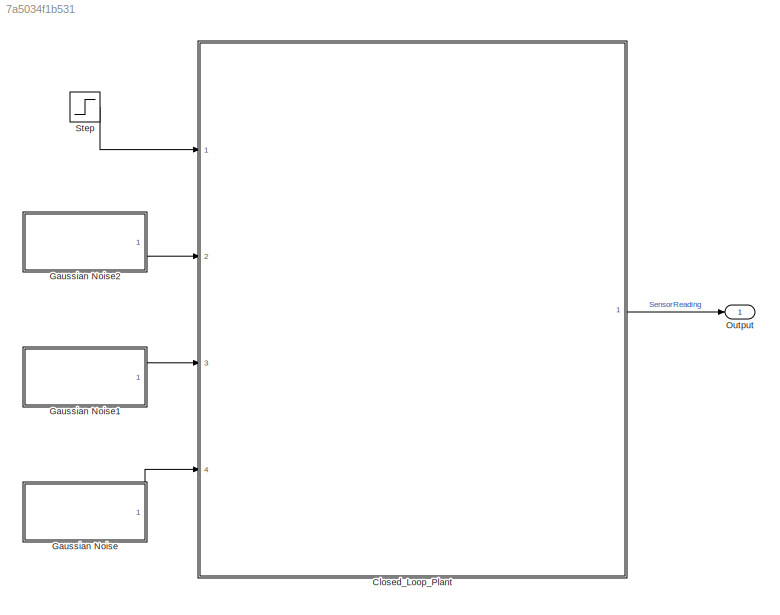
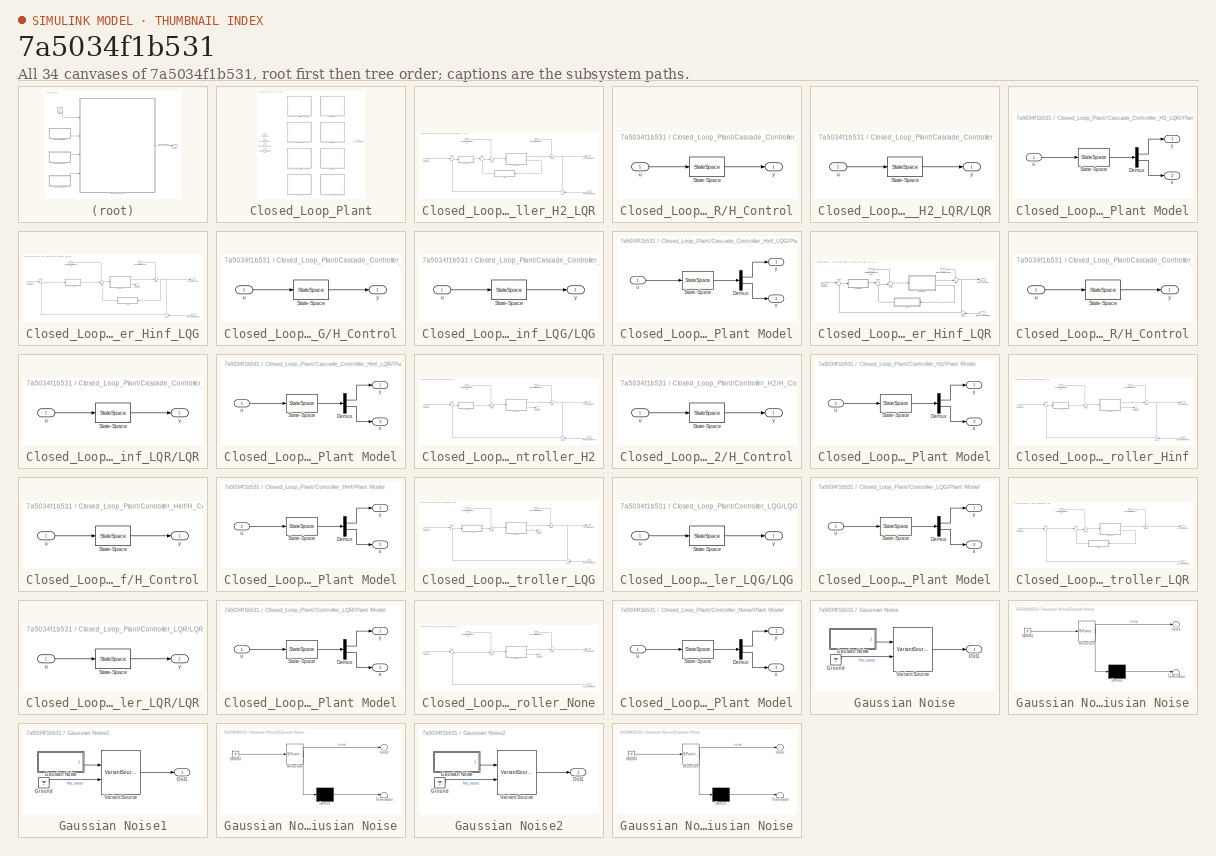
[diagram: thumbnail index - all 34 canvases of the model, root first then tree order]
MODEL slx_7a5034f1b531
KIND model
CONFIG AbsTol = auto
CONFIG EnableMultiTasking = off
CONFIG FixedStep = 1e-5
CONFIG MaxStep = auto
CONFIG MinStep = auto
CONFIG PreLoadFcn = Setup_VariantControl
CONFIG RelTol = 1e-3
CONFIG SampleTimeConstraint = Unconstrained
CONFIG Solver = ode4
CONFIG SolverName = ode4
CONFIG StartTime = 0.0
CONFIG StopTime = 50
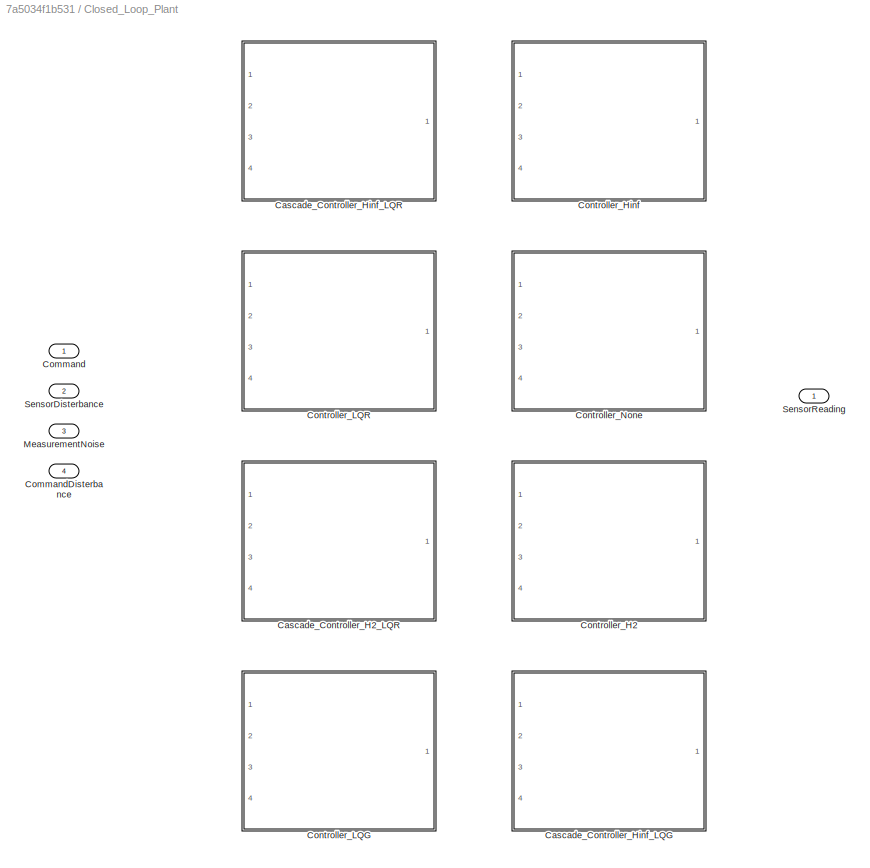
BLOCK [SubSystem] Closed_Loop_Plant
  Ports = [4, 1]
  RequestExecContextInheritance = off
  Variant = on
  VariantControl = Variant1
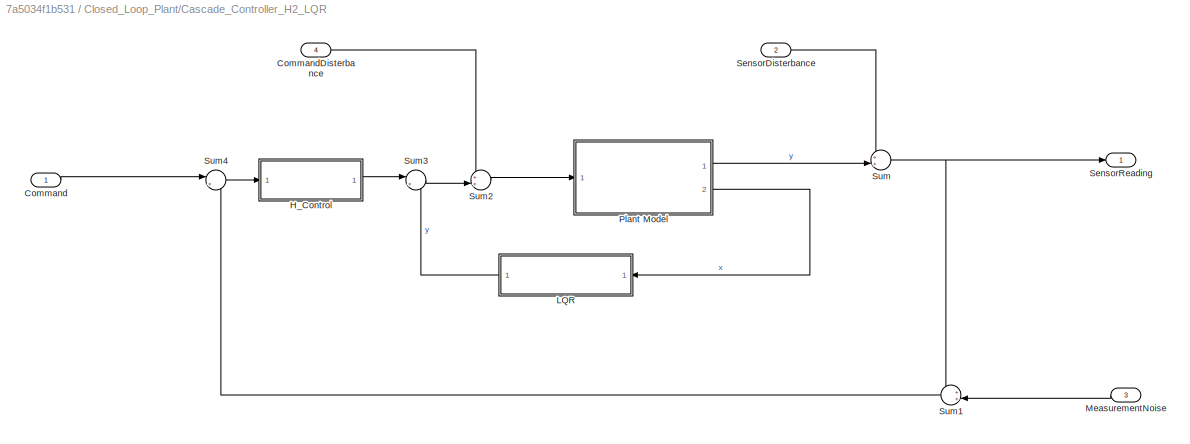
BLOCK [SubSystem] Closed_Loop_Plant/Cascade_Controller_H2_LQR
  Ports = [4, 1]
  RequestExecContextInheritance = off
  VariantControl = VC_H2_LQR
BLOCK [Inport] Closed_Loop_Plant/Cascade_Controller_H2_LQR/Command
  IconDisplay = Port number
BLOCK [Inport] Closed_Loop_Plant/Cascade_Controller_H2_LQR/CommandDisterbance
  IconDisplay = Port number
  Port = 4
  PortDimensions = 1
BLOCK [SubSystem] Closed_Loop_Plant/Cascade_Controller_H2_LQR/H_Control
  Ports = [1, 1]
  RequestExecContextInheritance = off
BLOCK [StateSpace] Closed_Loop_Plant/Cascade_Controller_H2_LQR/H_Control/State-Space
  A = plant.A
  B = plant.B
  C = plant.C
  D = plant.D
  InitialCondition = IC
  Ports = [1, 1]
BLOCK [Inport] Closed_Loop_Plant/Cascade_Controller_H2_LQR/H_Control/u
  IconDisplay = Port number
BLOCK [Outport] Closed_Loop_Plant/Cascade_Controller_H2_LQR/H_Control/y
  IconDisplay = Port number
BLOCK [SubSystem] Closed_Loop_Plant/Cascade_Controller_H2_LQR/LQR
  Ports = [1, 1]
  RequestExecContextInheritance = off
BLOCK [StateSpace] Closed_Loop_Plant/Cascade_Controller_H2_LQR/LQR/State-Space
  A = plant.A
  B = plant.B
  C = plant.C
  D = plant.D
  InitialCondition = IC
  Ports = [1, 1]
BLOCK [Inport] Closed_Loop_Plant/Cascade_Controller_H2_LQR/LQR/u
  IconDisplay = Port number
BLOCK [Outport] Closed_Loop_Plant/Cascade_Controller_H2_LQR/LQR/y
  IconDisplay = Port number
BLOCK [Inport] Closed_Loop_Plant/Cascade_Controller_H2_LQR/MeasurementNoise
  IconDisplay = Port number
  Port = 3
  PortDimensions = 1
BLOCK [SubSystem] Closed_Loop_Plant/Cascade_Controller_H2_LQR/Plant Model
  Ports = [1, 2]
  RequestExecContextInheritance = off
BLOCK [Demux] Closed_Loop_Plant/Cascade_Controller_H2_LQR/Plant Model/Demux
  DisplayOption = bar
  Outputs = [1,2]
  Ports = [1, 2]
BLOCK [StateSpace] Closed_Loop_Plant/Cascade_Controller_H2_LQR/Plant Model/State-Space
  A = plant.A*Rot2d(plant_misalignment)
  B = plant.B
  C = plant.C
  D = plant.D
  InitialCondition = IC
  Ports = [1, 1]
BLOCK [Inport] Closed_Loop_Plant/Cascade_Controller_H2_LQR/Plant Model/u
  IconDisplay = Port number
BLOCK [Outport] Closed_Loop_Plant/Cascade_Controller_H2_LQR/Plant Model/x
  IconDisplay = Port number
  Port = 2
BLOCK [Outport] Closed_Loop_Plant/Cascade_Controller_H2_LQR/Plant Model/y
  IconDisplay = Port number
BLOCK [Inport] Closed_Loop_Plant/Cascade_Controller_H2_LQR/SensorDisterbance
  IconDisplay = Port number
  Port = 2
  PortDimensions = 1
BLOCK [Outport] Closed_Loop_Plant/Cascade_Controller_H2_LQR/SensorReading
  IconDisplay = Port number
  PortDimensions = 1
BLOCK [Sum] Closed_Loop_Plant/Cascade_Controller_H2_LQR/Sum
  IconShape = round
  InputSameDT = off
  Inputs = ++|
  OutDataTypeStr = Inherit: Inherit via internal rule
  Ports = [2, 1]
  SaturateOnIntegerOverflow = off
BLOCK [Sum] Closed_Loop_Plant/Cascade_Controller_H2_LQR/Sum1
  IconShape = round
  InputSameDT = off
  Inputs = ++|
  OutDataTypeStr = Inherit: Inherit via internal rule
  Ports = [2, 1]
  SaturateOnIntegerOverflow = off
BLOCK [Sum] Closed_Loop_Plant/Cascade_Controller_H2_LQR/Sum2
  IconShape = round
  InputSameDT = off
  Inputs = ++|
  OutDataTypeStr = Inherit: Inherit via internal rule
  Ports = [2, 1]
  SaturateOnIntegerOverflow = off
BLOCK [Sum] Closed_Loop_Plant/Cascade_Controller_H2_LQR/Sum3
  IconShape = round
  InputSameDT = off
  Inputs = |+-
  OutDataTypeStr = Inherit: Inherit via internal rule
  Ports = [2, 1]
  SaturateOnIntegerOverflow = off
BLOCK [Sum] Closed_Loop_Plant/Cascade_Controller_H2_LQR/Sum4
  IconShape = round
  InputSameDT = off
  Inputs = |++
  OutDataTypeStr = Inherit: Inherit via internal rule
  Ports = [2, 1]
  SaturateOnIntegerOverflow = off
BLOCK [SubSystem] Closed_Loop_Plant/Cascade_Controller_Hinf_LQG
  Ports = [4, 1]
  RequestExecContextInheritance = off
  VariantControl = VC_Hinf_LQG
BLOCK [Inport] Closed_Loop_Plant/Cascade_Controller_Hinf_LQG/Command
  IconDisplay = Port number
BLOCK [Inport] Closed_Loop_Plant/Cascade_Controller_Hinf_LQG/CommandDisterbance
  IconDisplay = Port number
  Port = 4
  PortDimensions = 1
BLOCK [SubSystem] Closed_Loop_Plant/Cascade_Controller_Hinf_LQG/H_Control
  Ports = [1, 1]
  RequestExecContextInheritance = off
BLOCK [StateSpace] Closed_Loop_Plant/Cascade_Controller_Hinf_LQG/H_Control/State-Space
  A = plant.A
  B = plant.B
  C = plant.C
  D = plant.D
  InitialCondition = IC
  Ports = [1, 1]
BLOCK [Inport] Closed_Loop_Plant/Cascade_Controller_Hinf_LQG/H_Control/u
  IconDisplay = Port number
BLOCK [Outport] Closed_Loop_Plant/Cascade_Controller_Hinf_LQG/H_Control/y
  IconDisplay = Port number
BLOCK [SubSystem] Closed_Loop_Plant/Cascade_Controller_Hinf_LQG/LQG
  Ports = [1, 1]
  RequestExecContextInheritance = off
BLOCK [StateSpace] Closed_Loop_Plant/Cascade_Controller_Hinf_LQG/LQG/State-Space
  A = plant.A
  B = plant.B
  C = plant.C
  D = plant.D
  InitialCondition = IC
  Ports = [1, 1]
BLOCK [Inport] Closed_Loop_Plant/Cascade_Controller_Hinf_LQG/LQG/u
  IconDisplay = Port number
BLOCK [Outport] Closed_Loop_Plant/Cascade_Controller_Hinf_LQG/LQG/y
  IconDisplay = Port number
BLOCK [Inport] Closed_Loop_Plant/Cascade_Controller_Hinf_LQG/MeasurementNoise
  IconDisplay = Port number
  Port = 3
  PortDimensions = 1
BLOCK [SubSystem] Closed_Loop_Plant/Cascade_Controller_Hinf_LQG/Plant Model
  Ports = [1, 2]
  RequestExecContextInheritance = off
BLOCK [Demux] Closed_Loop_Plant/Cascade_Controller_Hinf_LQG/Plant Model/Demux
  DisplayOption = bar
  Outputs = [1,2]
  Ports = [1, 2]
BLOCK [StateSpace] Closed_Loop_Plant/Cascade_Controller_Hinf_LQG/Plant Model/State-Space
  A = plant.A*Rot2d(plant_misalignment)
  B = plant.B
  C = plant.C
  D = plant.D
  InitialCondition = IC
  Ports = [1, 1]
BLOCK [Inport] Closed_Loop_Plant/Cascade_Controller_Hinf_LQG/Plant Model/u
  IconDisplay = Port number
BLOCK [Outport] Closed_Loop_Plant/Cascade_Controller_Hinf_LQG/Plant Model/x
  IconDisplay = Port number
  Port = 2
BLOCK [Outport] Closed_Loop_Plant/Cascade_Controller_Hinf_LQG/Plant Model/y
  IconDisplay = Port number
BLOCK [Inport] Closed_Loop_Plant/Cascade_Controller_Hinf_LQG/SensorDisterbance
  IconDisplay = Port number
  Port = 2
  PortDimensions = 1
BLOCK [Outport] Closed_Loop_Plant/Cascade_Controller_Hinf_LQG/SensorReading
  IconDisplay = Port number
  PortDimensions = 1
BLOCK [Sum] Closed_Loop_Plant/Cascade_Controller_Hinf_LQG/Sum
  IconShape = round
  InputSameDT = off
  Inputs = ++|
  OutDataTypeStr = Inherit: Inherit via internal rule
  Ports = [2, 1]
  SaturateOnIntegerOverflow = off
BLOCK [Sum] Closed_Loop_Plant/Cascade_Controller_Hinf_LQG/Sum1
  IconShape = round
  InputSameDT = off
  Inputs = ++|
  OutDataTypeStr = Inherit: Inherit via internal rule
  Ports = [2, 1]
  SaturateOnIntegerOverflow = off
BLOCK [Sum] Closed_Loop_Plant/Cascade_Controller_Hinf_LQG/Sum2
  IconShape = round
  InputSameDT = off
  Inputs = +++
  OutDataTypeStr = Inherit: Inherit via internal rule
  Ports = [3, 1]
  SaturateOnIntegerOverflow = off
BLOCK [Sum] Closed_Loop_Plant/Cascade_Controller_Hinf_LQG/Sum4
  IconShape = round
  InputSameDT = off
  Inputs = |++
  OutDataTypeStr = Inherit: Inherit via internal rule
  Ports = [2, 1]
  SaturateOnIntegerOverflow = off
BLOCK [Terminator] Closed_Loop_Plant/Cascade_Controller_Hinf_LQG/Terminator
BLOCK [SubSystem] Closed_Loop_Plant/Cascade_Controller_Hinf_LQR
  Ports = [4, 1]
  RequestExecContextInheritance = off
  VariantControl = VC_Cascade_Hinf_LQR
BLOCK [Inport] Closed_Loop_Plant/Cascade_Controller_Hinf_LQR/Command
  IconDisplay = Port number
BLOCK [Inport] Closed_Loop_Plant/Cascade_Controller_Hinf_LQR/CommandDisterbance
  IconDisplay = Port number
  Port = 4
  PortDimensions = 1
BLOCK [SubSystem] Closed_Loop_Plant/Cascade_Controller_Hinf_LQR/H_Control
  Ports = [1, 1]
  RequestExecContextInheritance = off
BLOCK [StateSpace] Closed_Loop_Plant/Cascade_Controller_Hinf_LQR/H_Control/State-Space
  A = plant.A
  B = plant.B
  C = plant.C
  D = plant.D
  InitialCondition = IC
  Ports = [1, 1]
BLOCK [Inport] Closed_Loop_Plant/Cascade_Controller_Hinf_LQR/H_Control/u
  IconDisplay = Port number
BLOCK [Outport] Closed_Loop_Plant/Cascade_Controller_Hinf_LQR/H_Control/y
  IconDisplay = Port number
BLOCK [SubSystem] Closed_Loop_Plant/Cascade_Controller_Hinf_LQR/LQR
  Ports = [1, 1]
  RequestExecContextInheritance = off
BLOCK [StateSpace] Closed_Loop_Plant/Cascade_Controller_Hinf_LQR/LQR/State-Space
  A = plant.A
  B = plant.B
  C = plant.C
  D = plant.D
  InitialCondition = IC
  Ports = [1, 1]
BLOCK [Inport] Closed_Loop_Plant/Cascade_Controller_Hinf_LQR/LQR/u
  IconDisplay = Port number
BLOCK [Outport] Closed_Loop_Plant/Cascade_Controller_Hinf_LQR/LQR/y
  IconDisplay = Port number
BLOCK [Inport] Closed_Loop_Plant/Cascade_Controller_Hinf_LQR/MeasurementNoise
  IconDisplay = Port number
  Port = 3
  PortDimensions = 1
BLOCK [SubSystem] Closed_Loop_Plant/Cascade_Controller_Hinf_LQR/Plant Model
  Ports = [1, 2]
  RequestExecContextInheritance = off
BLOCK [Demux] Closed_Loop_Plant/Cascade_Controller_Hinf_LQR/Plant Model/Demux
  DisplayOption = bar
  Outputs = [1,2]
  Ports = [1, 2]
BLOCK [StateSpace] Closed_Loop_Plant/Cascade_Controller_Hinf_LQR/Plant Model/State-Space
  A = plant.A*Rot2d(plant_misalignment)
  B = plant.B
  C = plant.C
  D = plant.D
  InitialCondition = IC
  Ports = [1, 1]
BLOCK [Inport] Closed_Loop_Plant/Cascade_Controller_Hinf_LQR/Plant Model/u
  IconDisplay = Port number
BLOCK [Outport] Closed_Loop_Plant/Cascade_Controller_Hinf_LQR/Plant Model/x
  IconDisplay = Port number
  Port = 2
BLOCK [Outport] Closed_Loop_Plant/Cascade_Controller_Hinf_LQR/Plant Model/y
  IconDisplay = Port number
BLOCK [Inport] Closed_Loop_Plant/Cascade_Controller_Hinf_LQR/SensorDisterbance
  IconDisplay = Port number
  Port = 2
  PortDimensions = 1
BLOCK [Outport] Closed_Loop_Plant/Cascade_Controller_Hinf_LQR/SensorReading
  IconDisplay = Port number
  PortDimensions = 1
BLOCK [Sum] Closed_Loop_Plant/Cascade_Controller_Hinf_LQR/Sum
  IconShape = round
  InputSameDT = off
  Inputs = ++|
  OutDataTypeStr = Inherit: Inherit via internal rule
  Ports = [2, 1]
  SaturateOnIntegerOverflow = off
BLOCK [Sum] Closed_Loop_Plant/Cascade_Controller_Hinf_LQR/Sum1
  IconShape = round
  InputSameDT = off
  Inputs = ++|
  OutDataTypeStr = Inherit: Inherit via internal rule
  Ports = [2, 1]
  SaturateOnIntegerOverflow = off
BLOCK [Sum] Closed_Loop_Plant/Cascade_Controller_Hinf_LQR/Sum2
  IconShape = round
  InputSameDT = off
  Inputs = ++|
  OutDataTypeStr = Inherit: Inherit via internal rule
  Ports = [2, 1]
  SaturateOnIntegerOverflow = off
BLOCK [Sum] Closed_Loop_Plant/Cascade_Controller_Hinf_LQR/Sum3
  IconShape = round
  InputSameDT = off
  Inputs = |+-
  OutDataTypeStr = Inherit: Inherit via internal rule
  Ports = [2, 1]
  SaturateOnIntegerOverflow = off
BLOCK [Sum] Closed_Loop_Plant/Cascade_Controller_Hinf_LQR/Sum4
  IconShape = round
  InputSameDT = off
  Inputs = |++
  OutDataTypeStr = Inherit: Inherit via internal rule
  Ports = [2, 1]
  SaturateOnIntegerOverflow = off
BLOCK [Inport] Closed_Loop_Plant/Command
  IconDisplay = Port number
BLOCK [Inport] Closed_Loop_Plant/CommandDisterbance
  IconDisplay = Port number
  Port = 4
BLOCK [SubSystem] Closed_Loop_Plant/Controller_H2
  Ports = [4, 1]
  RequestExecContextInheritance = off
  VariantControl = VC_H2
BLOCK [Inport] Closed_Loop_Plant/Controller_H2/Command
  IconDisplay = Port number
BLOCK [Inport] Closed_Loop_Plant/Controller_H2/CommandDisterbance
  IconDisplay = Port number
  Port = 4
  PortDimensions = 1
BLOCK [SubSystem] Closed_Loop_Plant/Controller_H2/H_Control
  Ports = [1, 1]
  RequestExecContextInheritance = off
BLOCK [StateSpace] Closed_Loop_Plant/Controller_H2/H_Control/State-Space
  A = plant.A
  B = plant.B
  C = plant.C
  D = plant.D
  InitialCondition = IC
  Ports = [1, 1]
BLOCK [Inport] Closed_Loop_Plant/Controller_H2/H_Control/u
  IconDisplay = Port number
BLOCK [Outport] Closed_Loop_Plant/Controller_H2/H_Control/y
  IconDisplay = Port number
BLOCK [Inport] Closed_Loop_Plant/Controller_H2/MeasurementNoise
  IconDisplay = Port number
  Port = 3
  PortDimensions = 1
BLOCK [SubSystem] Closed_Loop_Plant/Controller_H2/Plant Model
  Ports = [1, 2]
  RequestExecContextInheritance = off
BLOCK [Demux] Closed_Loop_Plant/Controller_H2/Plant Model/Demux
  DisplayOption = bar
  Outputs = [1,2]
  Ports = [1, 2]
BLOCK [StateSpace] Closed_Loop_Plant/Controller_H2/Plant Model/State-Space
  A = plant.A*Rot2d(plant_misalignment)
  B = plant.B
  C = plant.C
  D = plant.D
  InitialCondition = IC
  Ports = [1, 1]
BLOCK [Inport] Closed_Loop_Plant/Controller_H2/Plant Model/u
  IconDisplay = Port number
BLOCK [Outport] Closed_Loop_Plant/Controller_H2/Plant Model/x
  IconDisplay = Port number
  Port = 2
BLOCK [Outport] Closed_Loop_Plant/Controller_H2/Plant Model/y
  IconDisplay = Port number
BLOCK [Inport] Closed_Loop_Plant/Controller_H2/SensorDisterbance
  IconDisplay = Port number
  Port = 2
  PortDimensions = 1
BLOCK [Outport] Closed_Loop_Plant/Controller_H2/SensorReading
  IconDisplay = Port number
  PortDimensions = 1
BLOCK [Sum] Closed_Loop_Plant/Controller_H2/Sum
  IconShape = round
  InputSameDT = off
  Inputs = ++|
  OutDataTypeStr = Inherit: Inherit via internal rule
  Ports = [2, 1]
  SaturateOnIntegerOverflow = off
BLOCK [Sum] Closed_Loop_Plant/Controller_H2/Sum1
  IconShape = round
  InputSameDT = off
  Inputs = ++|
  OutDataTypeStr = Inherit: Inherit via internal rule
  Ports = [2, 1]
  SaturateOnIntegerOverflow = off
BLOCK [Sum] Closed_Loop_Plant/Controller_H2/Sum2
  IconShape = round
  InputSameDT = off
  Inputs = ++|
  OutDataTypeStr = Inherit: Inherit via internal rule
  Ports = [2, 1]
  SaturateOnIntegerOverflow = off
BLOCK [Sum] Closed_Loop_Plant/Controller_H2/Sum4
  IconShape = round
  InputSameDT = off
  Inputs = |++
  OutDataTypeStr = Inherit: Inherit via internal rule
  Ports = [2, 1]
  SaturateOnIntegerOverflow = off
BLOCK [Terminator] Closed_Loop_Plant/Controller_H2/Terminator
BLOCK [SubSystem] Closed_Loop_Plant/Controller_Hinf
  Ports = [4, 1]
  RequestExecContextInheritance = off
  VariantControl = VC_Hinf
BLOCK [Inport] Closed_Loop_Plant/Controller_Hinf/Command
  IconDisplay = Port number
BLOCK [Inport] Closed_Loop_Plant/Controller_Hinf/CommandDisterbance
  IconDisplay = Port number
  Port = 4
  PortDimensions = 1
BLOCK [SubSystem] Closed_Loop_Plant/Controller_Hinf/H_Control
  Ports = [1, 1]
  RequestExecContextInheritance = off
BLOCK [StateSpace] Closed_Loop_Plant/Controller_Hinf/H_Control/State-Space
  A = plant.A
  B = plant.B
  C = plant.C
  D = plant.D
  InitialCondition = IC
  Ports = [1, 1]
BLOCK [Inport] Closed_Loop_Plant/Controller_Hinf/H_Control/u
  IconDisplay = Port number
BLOCK [Outport] Closed_Loop_Plant/Controller_Hinf/H_Control/y
  IconDisplay = Port number
BLOCK [Inport] Closed_Loop_Plant/Controller_Hinf/MeasurementNoise
  IconDisplay = Port number
  Port = 3
  PortDimensions = 1
BLOCK [SubSystem] Closed_Loop_Plant/Controller_Hinf/Plant Model
  Ports = [1, 2]
  RequestExecContextInheritance = off
BLOCK [Demux] Closed_Loop_Plant/Controller_Hinf/Plant Model/Demux
  DisplayOption = bar
  Outputs = [1,2]
  Ports = [1, 2]
BLOCK [StateSpace] Closed_Loop_Plant/Controller_Hinf/Plant Model/State-Space
  A = plant.A*Rot2d(plant_misalignment)
  B = plant.B
  C = plant.C
  D = plant.D
  InitialCondition = IC
  Ports = [1, 1]
BLOCK [Inport] Closed_Loop_Plant/Controller_Hinf/Plant Model/u
  IconDisplay = Port number
BLOCK [Outport] Closed_Loop_Plant/Controller_Hinf/Plant Model/x
  IconDisplay = Port number
  Port = 2
BLOCK [Outport] Closed_Loop_Plant/Controller_Hinf/Plant Model/y
  IconDisplay = Port number
BLOCK [Inport] Closed_Loop_Plant/Controller_Hinf/SensorDisterbance
  IconDisplay = Port number
  Port = 2
  PortDimensions = 1
BLOCK [Outport] Closed_Loop_Plant/Controller_Hinf/SensorReading
  IconDisplay = Port number
  PortDimensions = 1
BLOCK [Sum] Closed_Loop_Plant/Controller_Hinf/Sum
  IconShape = round
  InputSameDT = off
  Inputs = ++|
  OutDataTypeStr = Inherit: Inherit via internal rule
  Ports = [2, 1]
  SaturateOnIntegerOverflow = off
BLOCK [Sum] Closed_Loop_Plant/Controller_Hinf/Sum1
  IconShape = round
  InputSameDT = off
  Inputs = ++|
  OutDataTypeStr = Inherit: Inherit via internal rule
  Ports = [2, 1]
  SaturateOnIntegerOverflow = off
BLOCK [Sum] Closed_Loop_Plant/Controller_Hinf/Sum2
  IconShape = round
  InputSameDT = off
  Inputs = ++|
  OutDataTypeStr = Inherit: Inherit via internal rule
  Ports = [2, 1]
  SaturateOnIntegerOverflow = off
BLOCK [Sum] Closed_Loop_Plant/Controller_Hinf/Sum4
  IconShape = round
  InputSameDT = off
  Inputs = |++
  OutDataTypeStr = Inherit: Inherit via internal rule
  Ports = [2, 1]
  SaturateOnIntegerOverflow = off
BLOCK [Terminator] Closed_Loop_Plant/Controller_Hinf/Terminator
BLOCK [SubSystem] Closed_Loop_Plant/Controller_LQG
  Ports = [4, 1]
  RequestExecContextInheritance = off
  VariantControl = VC_LQG
BLOCK [Inport] Closed_Loop_Plant/Controller_LQG/Command
  IconDisplay = Port number
BLOCK [Inport] Closed_Loop_Plant/Controller_LQG/CommandDisterbance
  IconDisplay = Port number
  Port = 4
  PortDimensions = 1
BLOCK [SubSystem] Closed_Loop_Plant/Controller_LQG/LQG
  Ports = [1, 1]
  RequestExecContextInheritance = off
BLOCK [StateSpace] Closed_Loop_Plant/Controller_LQG/LQG/State-Space
  A = plant.A
  B = plant.B
  C = plant.C
  D = plant.D
  InitialCondition = IC
  Ports = [1, 1]
BLOCK [Inport] Closed_Loop_Plant/Controller_LQG/LQG/u
  IconDisplay = Port number
BLOCK [Outport] Closed_Loop_Plant/Controller_LQG/LQG/y
  IconDisplay = Port number
BLOCK [Inport] Closed_Loop_Plant/Controller_LQG/MeasurementNoise
  IconDisplay = Port number
  Port = 3
  PortDimensions = 1
BLOCK [SubSystem] Closed_Loop_Plant/Controller_LQG/Plant Model
  Ports = [1, 2]
  RequestExecContextInheritance = off
BLOCK [Demux] Closed_Loop_Plant/Controller_LQG/Plant Model/Demux
  DisplayOption = bar
  Outputs = [1,2]
  Ports = [1, 2]
BLOCK [StateSpace] Closed_Loop_Plant/Controller_LQG/Plant Model/State-Space
  A = plant.A*Rot2d(plant_misalignment)
  B = plant.B
  C = plant.C
  D = plant.D
  InitialCondition = IC
  Ports = [1, 1]
BLOCK [Inport] Closed_Loop_Plant/Controller_LQG/Plant Model/u
  IconDisplay = Port number
BLOCK [Outport] Closed_Loop_Plant/Controller_LQG/Plant Model/x
  IconDisplay = Port number
  Port = 2
BLOCK [Outport] Closed_Loop_Plant/Controller_LQG/Plant Model/y
  IconDisplay = Port number
BLOCK [Inport] Closed_Loop_Plant/Controller_LQG/SensorDisterbance
  IconDisplay = Port number
  Port = 2
  PortDimensions = 1
BLOCK [Outport] Closed_Loop_Plant/Controller_LQG/SensorReading
  IconDisplay = Port number
  PortDimensions = 1
BLOCK [Sum] Closed_Loop_Plant/Controller_LQG/Sum
  IconShape = round
  InputSameDT = off
  Inputs = ++|
  OutDataTypeStr = Inherit: Inherit via internal rule
  Ports = [2, 1]
  SaturateOnIntegerOverflow = off
BLOCK [Sum] Closed_Loop_Plant/Controller_LQG/Sum1
  IconShape = round
  InputSameDT = off
  Inputs = ++|
  OutDataTypeStr = Inherit: Inherit via internal rule
  Ports = [2, 1]
  SaturateOnIntegerOverflow = off
BLOCK [Sum] Closed_Loop_Plant/Controller_LQG/Sum2
  IconShape = round
  InputSameDT = off
  Inputs = ++|
  OutDataTypeStr = Inherit: Inherit via internal rule
  Ports = [2, 1]
  SaturateOnIntegerOverflow = off
BLOCK [Sum] Closed_Loop_Plant/Controller_LQG/Sum4
  IconShape = round
  InputSameDT = off
  Inputs = |++
  OutDataTypeStr = Inherit: Inherit via internal rule
  Ports = [2, 1]
  SaturateOnIntegerOverflow = off
BLOCK [Terminator] Closed_Loop_Plant/Controller_LQG/Terminator
BLOCK [SubSystem] Closed_Loop_Plant/Controller_LQR
  Ports = [4, 1]
  RequestExecContextInheritance = off
  VariantControl = VC_LQR
BLOCK [Inport] Closed_Loop_Plant/Controller_LQR/Command
  IconDisplay = Port number
BLOCK [Inport] Closed_Loop_Plant/Controller_LQR/CommandDisterbance
  IconDisplay = Port number
  Port = 4
  PortDimensions = 1
BLOCK [SubSystem] Closed_Loop_Plant/Controller_LQR/LQR
  Ports = [1, 1]
  RequestExecContextInheritance = off
BLOCK [StateSpace] Closed_Loop_Plant/Controller_LQR/LQR/State-Space
  A = plant.A
  B = plant.B
  C = plant.C
  D = plant.D
  InitialCondition = IC
  Ports = [1, 1]
BLOCK [Inport] Closed_Loop_Plant/Controller_LQR/LQR/u
  IconDisplay = Port number
BLOCK [Outport] Closed_Loop_Plant/Controller_LQR/LQR/y
  IconDisplay = Port number
BLOCK [Inport] Closed_Loop_Plant/Controller_LQR/MeasurementNoise
  IconDisplay = Port number
  Port = 3
  PortDimensions = 1
BLOCK [SubSystem] Closed_Loop_Plant/Controller_LQR/Plant Model
  Ports = [1, 2]
  RequestExecContextInheritance = off
BLOCK [Demux] Closed_Loop_Plant/Controller_LQR/Plant Model/Demux
  DisplayOption = bar
  Outputs = [1,2]
  Ports = [1, 2]
BLOCK [StateSpace] Closed_Loop_Plant/Controller_LQR/Plant Model/State-Space
  A = plant.A*Rot2d(plant_misalignment)
  B = plant.B
  C = plant.C
  D = plant.D
  InitialCondition = IC
  Ports = [1, 1]
BLOCK [Inport] Closed_Loop_Plant/Controller_LQR/Plant Model/u
  IconDisplay = Port number
BLOCK [Outport] Closed_Loop_Plant/Controller_LQR/Plant Model/x
  IconDisplay = Port number
  Port = 2
BLOCK [Outport] Closed_Loop_Plant/Controller_LQR/Plant Model/y
  IconDisplay = Port number
BLOCK [Inport] Closed_Loop_Plant/Controller_LQR/SensorDisterbance
  IconDisplay = Port number
  Port = 2
  PortDimensions = 1
BLOCK [Outport] Closed_Loop_Plant/Controller_LQR/SensorReading
  IconDisplay = Port number
  PortDimensions = 1
BLOCK [Sum] Closed_Loop_Plant/Controller_LQR/Sum
  IconShape = round
  InputSameDT = off
  Inputs = ++|
  OutDataTypeStr = Inherit: Inherit via internal rule
  Ports = [2, 1]
  SaturateOnIntegerOverflow = off
BLOCK [Sum] Closed_Loop_Plant/Controller_LQR/Sum2
  IconShape = round
  InputSameDT = off
  Inputs = ++|
  OutDataTypeStr = Inherit: Inherit via internal rule
  Ports = [2, 1]
  SaturateOnIntegerOverflow = off
BLOCK [Sum] Closed_Loop_Plant/Controller_LQR/Sum3
  IconShape = round
  InputSameDT = off
  Inputs = |+-
  OutDataTypeStr = Inherit: Inherit via internal rule
  Ports = [2, 1]
  SaturateOnIntegerOverflow = off
BLOCK [Sum] Closed_Loop_Plant/Controller_LQR/Sum4
  IconShape = round
  InputSameDT = off
  Inputs = |++
  OutDataTypeStr = Inherit: Inherit via internal rule
  Ports = [2, 1]
  SaturateOnIntegerOverflow = off
BLOCK [SubSystem] Closed_Loop_Plant/Controller_None
  Ports = [4, 1]
  RequestExecContextInheritance = off
  VariantControl = VC_None
BLOCK [Inport] Closed_Loop_Plant/Controller_None/Command
  IconDisplay = Port number
BLOCK [Inport] Closed_Loop_Plant/Controller_None/CommandDisterbance
  IconDisplay = Port number
  Port = 4
  PortDimensions = 1
BLOCK [Inport] Closed_Loop_Plant/Controller_None/MeasurementNoise
  IconDisplay = Port number
  Port = 3
  PortDimensions = 1
BLOCK [SubSystem] Closed_Loop_Plant/Controller_None/Plant Model
  Ports = [1, 2]
  RequestExecContextInheritance = off
BLOCK [Demux] Closed_Loop_Plant/Controller_None/Plant Model/Demux
  DisplayOption = bar
  Outputs = [1,2]
  Ports = [1, 2]
BLOCK [StateSpace] Closed_Loop_Plant/Controller_None/Plant Model/State-Space
  A = plant.A*Rot2d(plant_misalignment)
  B = plant.B
  C = plant.C
  D = plant.D
  InitialCondition = IC
  Ports = [1, 1]
BLOCK [Inport] Closed_Loop_Plant/Controller_None/Plant Model/u
  IconDisplay = Port number
BLOCK [Outport] Closed_Loop_Plant/Controller_None/Plant Model/x
  IconDisplay = Port number
  Port = 2
BLOCK [Outport] Closed_Loop_Plant/Controller_None/Plant Model/y
  IconDisplay = Port number
BLOCK [Inport] Closed_Loop_Plant/Controller_None/SensorDisterbance
  IconDisplay = Port number
  Port = 2
  PortDimensions = 1
BLOCK [Outport] Closed_Loop_Plant/Controller_None/SensorReading
  IconDisplay = Port number
  PortDimensions = 1
BLOCK [Sum] Closed_Loop_Plant/Controller_None/Sum
  IconShape = round
  InputSameDT = off
  Inputs = ++|
  OutDataTypeStr = Inherit: Inherit via internal rule
  Ports = [2, 1]
  SaturateOnIntegerOverflow = off
BLOCK [Sum] Closed_Loop_Plant/Controller_None/Sum2
  IconShape = round
  InputSameDT = off
  Inputs = ++|
  OutDataTypeStr = Inherit: Inherit via internal rule
  Ports = [2, 1]
  SaturateOnIntegerOverflow = off
BLOCK [Sum] Closed_Loop_Plant/Controller_None/Sum4
  IconShape = round
  InputSameDT = off
  Inputs = |+-
  OutDataTypeStr = Inherit: Inherit via internal rule
  Ports = [2, 1]
  SaturateOnIntegerOverflow = off
BLOCK [Terminator] Closed_Loop_Plant/Controller_None/Terminator
BLOCK [Inport] Closed_Loop_Plant/MeasurementNoise
  IconDisplay = Port number
  Port = 3
BLOCK [Inport] Closed_Loop_Plant/SensorDisterbance
  IconDisplay = Port number
  Port = 2
BLOCK [Outport] Closed_Loop_Plant/SensorReading
  IconDisplay = Port number
BLOCK [SubSystem] Gaussian Noise
  Ports = [0, 1]
  RequestExecContextInheritance = off
BLOCK [SubSystem] Gaussian Noise/Gausian Noise
  ErrorFcn = Stateflow.Translate.translate
  PermitHierarchicalResolution = ExplicitOnly
  Ports = [0, 1]
  RequestExecContextInheritance = off
  SFBlockType = MATLAB Function
  TreatAsAtomicUnit = on
BLOCK [Demux] Gaussian Noise/Gausian Noise/ Demux 
  Outputs = 1
  Ports = [1, 1]
BLOCK [Ground] Gaussian Noise/Gausian Noise/ Ground 
BLOCK [S-Function] Gaussian Noise/Gausian Noise/ SFunction 
  EnableBusSupport = on
  FunctionName = sf_sfun
  Parameters = power
  PortCounts = [1 2]
  Ports = [1, 2]
  SFcnIsStateOwnerBlock = off
  SFunctionDeploymentMode = off
  Tag = Stateflow S-Function Controllers_Disturbances 2
BLOCK [Terminator] Gaussian Noise/Gausian Noise/ Terminator 
BLOCK [Outport] Gaussian Noise/Gausian Noise/noise
  IconDisplay = Port number
BLOCK [Ground] Gaussian Noise/Ground
BLOCK [Outport] Gaussian Noise/Out1
  IconDisplay = Port number
BLOCK [VariantSource] Gaussian Noise/Variant Source
  Ports = [2, 1]
BLOCK [SubSystem] Gaussian Noise1
  Ports = [0, 1]
  RequestExecContextInheritance = off
BLOCK [SubSystem] Gaussian Noise1/Gausian Noise
  ErrorFcn = Stateflow.Translate.translate
  PermitHierarchicalResolution = ExplicitOnly
  Ports = [0, 1]
  RequestExecContextInheritance = off
  SFBlockType = MATLAB Function
  TreatAsAtomicUnit = on
BLOCK [Demux] Gaussian Noise1/Gausian Noise/ Demux 
  Outputs = 1
  Ports = [1, 1]
BLOCK [Ground] Gaussian Noise1/Gausian Noise/ Ground 
BLOCK [S-Function] Gaussian Noise1/Gausian Noise/ SFunction 
  EnableBusSupport = on
  FunctionName = sf_sfun
  Parameters = power
  PortCounts = [1 2]
  Ports = [1, 2]
  SFcnIsStateOwnerBlock = off
  SFunctionDeploymentMode = off
  Tag = Stateflow S-Function Controllers_Disturbances 1
BLOCK [Terminator] Gaussian Noise1/Gausian Noise/ Terminator 
BLOCK [Outport] Gaussian Noise1/Gausian Noise/noise
  IconDisplay = Port number
BLOCK [Ground] Gaussian Noise1/Ground
BLOCK [Outport] Gaussian Noise1/Out1
  IconDisplay = Port number
BLOCK [VariantSource] Gaussian Noise1/Variant Source
  Ports = [2, 1]
BLOCK [SubSystem] Gaussian Noise2
  Ports = [0, 1]
  RequestExecContextInheritance = off
BLOCK [SubSystem] Gaussian Noise2/Gausian Noise
  ErrorFcn = Stateflow.Translate.translate
  PermitHierarchicalResolution = ExplicitOnly
  Ports = [0, 1]
  RequestExecContextInheritance = off
  SFBlockType = MATLAB Function
  TreatAsAtomicUnit = on
BLOCK [Demux] Gaussian Noise2/Gausian Noise/ Demux 
  Outputs = 1
  Ports = [1, 1]
BLOCK [Ground] Gaussian Noise2/Gausian Noise/ Ground 
BLOCK [S-Function] Gaussian Noise2/Gausian Noise/ SFunction 
  EnableBusSupport = on
  FunctionName = sf_sfun
  Parameters = power
  PortCounts = [1 2]
  Ports = [1, 2]
  SFcnIsStateOwnerBlock = off
  SFunctionDeploymentMode = off
  Tag = Stateflow S-Function Controllers_Disturbances 3
BLOCK [Terminator] Gaussian Noise2/Gausian Noise/ Terminator 
BLOCK [Outport] Gaussian Noise2/Gausian Noise/noise
  IconDisplay = Port number
BLOCK [Ground] Gaussian Noise2/Ground
BLOCK [Outport] Gaussian Noise2/Out1
  IconDisplay = Port number
BLOCK [VariantSource] Gaussian Noise2/Variant Source
  Ports = [2, 1]
BLOCK [Outport] Output
  IconDisplay = Port number
BLOCK [Step] Step
  After = 5
  SampleTime = 0
  Time = 5
LINE Closed_Loop_Plant/Cascade_Controller_H2_LQR/Command:1 -> Closed_Loop_Plant/Cascade_Controller_H2_LQR/Sum4:1
LINE Closed_Loop_Plant/Cascade_Controller_H2_LQR/CommandDisterbance:1 -> Closed_Loop_Plant/Cascade_Controller_H2_LQR/Sum2:1
LINE Closed_Loop_Plant/Cascade_Controller_H2_LQR/H_Control/State-Space:1 -> Closed_Loop_Plant/Cascade_Controller_H2_LQR/H_Control/y:1
LINE Closed_Loop_Plant/Cascade_Controller_H2_LQR/H_Control/u:1 -> Closed_Loop_Plant/Cascade_Controller_H2_LQR/H_Control/State-Space:1
LINE Closed_Loop_Plant/Cascade_Controller_H2_LQR/H_Control:1 -> Closed_Loop_Plant/Cascade_Controller_H2_LQR/Sum3:1
LINE Closed_Loop_Plant/Cascade_Controller_H2_LQR/LQR/State-Space:1 -> Closed_Loop_Plant/Cascade_Controller_H2_LQR/LQR/y:1
LINE Closed_Loop_Plant/Cascade_Controller_H2_LQR/LQR/u:1 -> Closed_Loop_Plant/Cascade_Controller_H2_LQR/LQR/State-Space:1
LINE Closed_Loop_Plant/Cascade_Controller_H2_LQR/LQR:1 -> Closed_Loop_Plant/Cascade_Controller_H2_LQR/Sum3:2
LINE Closed_Loop_Plant/Cascade_Controller_H2_LQR/MeasurementNoise:1 -> Closed_Loop_Plant/Cascade_Controller_H2_LQR/Sum1:2
LINE Closed_Loop_Plant/Cascade_Controller_H2_LQR/Plant Model/Demux:1 -> Closed_Loop_Plant/Cascade_Controller_H2_LQR/Plant Model/y:1
LINE Closed_Loop_Plant/Cascade_Controller_H2_LQR/Plant Model/Demux:2 -> Closed_Loop_Plant/Cascade_Controller_H2_LQR/Plant Model/x:1
LINE Closed_Loop_Plant/Cascade_Controller_H2_LQR/Plant Model/State-Space:1 -> Closed_Loop_Plant/Cascade_Controller_H2_LQR/Plant Model/Demux:1
LINE Closed_Loop_Plant/Cascade_Controller_H2_LQR/Plant Model/u:1 -> Closed_Loop_Plant/Cascade_Controller_H2_LQR/Plant Model/State-Space:1
LINE Closed_Loop_Plant/Cascade_Controller_H2_LQR/Plant Model:1 -> Closed_Loop_Plant/Cascade_Controller_H2_LQR/Sum:2
LINE Closed_Loop_Plant/Cascade_Controller_H2_LQR/Plant Model:2 -> Closed_Loop_Plant/Cascade_Controller_H2_LQR/LQR:1
LINE Closed_Loop_Plant/Cascade_Controller_H2_LQR/SensorDisterbance:1 -> Closed_Loop_Plant/Cascade_Controller_H2_LQR/Sum:1
LINE Closed_Loop_Plant/Cascade_Controller_H2_LQR/Sum1:1 -> Closed_Loop_Plant/Cascade_Controller_H2_LQR/Sum4:2
LINE Closed_Loop_Plant/Cascade_Controller_H2_LQR/Sum2:1 -> Closed_Loop_Plant/Cascade_Controller_H2_LQR/Plant Model:1
LINE Closed_Loop_Plant/Cascade_Controller_H2_LQR/Sum3:1 -> Closed_Loop_Plant/Cascade_Controller_H2_LQR/Sum2:2
LINE Closed_Loop_Plant/Cascade_Controller_H2_LQR/Sum4:1 -> Closed_Loop_Plant/Cascade_Controller_H2_LQR/H_Control:1
NET Closed_Loop_Plant/Cascade_Controller_H2_LQR/Sum:1 -> Closed_Loop_Plant/Cascade_Controller_H2_LQR/SensorReading:1, Closed_Loop_Plant/Cascade_Controller_H2_LQR/Sum1:1
LINE Closed_Loop_Plant/Cascade_Controller_Hinf_LQG/Command:1 -> Closed_Loop_Plant/Cascade_Controller_Hinf_LQG/Sum4:1
LINE Closed_Loop_Plant/Cascade_Controller_Hinf_LQG/CommandDisterbance:1 -> Closed_Loop_Plant/Cascade_Controller_Hinf_LQG/Sum2:1
LINE Closed_Loop_Plant/Cascade_Controller_Hinf_LQG/H_Control/State-Space:1 -> Closed_Loop_Plant/Cascade_Controller_Hinf_LQG/H_Control/y:1
LINE Closed_Loop_Plant/Cascade_Controller_Hinf_LQG/H_Control/u:1 -> Closed_Loop_Plant/Cascade_Controller_Hinf_LQG/H_Control/State-Space:1
LINE Closed_Loop_Plant/Cascade_Controller_Hinf_LQG/H_Control:1 -> Closed_Loop_Plant/Cascade_Controller_Hinf_LQG/Sum2:2
LINE Closed_Loop_Plant/Cascade_Controller_Hinf_LQG/LQG/State-Space:1 -> Closed_Loop_Plant/Cascade_Controller_Hinf_LQG/LQG/y:1
LINE Closed_Loop_Plant/Cascade_Controller_Hinf_LQG/LQG/u:1 -> Closed_Loop_Plant/Cascade_Controller_Hinf_LQG/LQG/State-Space:1
LINE Closed_Loop_Plant/Cascade_Controller_Hinf_LQG/LQG:1 -> Closed_Loop_Plant/Cascade_Controller_Hinf_LQG/Sum2:3
LINE Closed_Loop_Plant/Cascade_Controller_Hinf_LQG/MeasurementNoise:1 -> Closed_Loop_Plant/Cascade_Controller_Hinf_LQG/Sum1:2
LINE Closed_Loop_Plant/Cascade_Controller_Hinf_LQG/Plant Model/Demux:1 -> Closed_Loop_Plant/Cascade_Controller_Hinf_LQG/Plant Model/y:1
LINE Closed_Loop_Plant/Cascade_Controller_Hinf_LQG/Plant Model/Demux:2 -> Closed_Loop_Plant/Cascade_Controller_Hinf_LQG/Plant Model/x:1
LINE Closed_Loop_Plant/Cascade_Controller_Hinf_LQG/Plant Model/State-Space:1 -> Closed_Loop_Plant/Cascade_Controller_Hinf_LQG/Plant Model/Demux:1
LINE Closed_Loop_Plant/Cascade_Controller_Hinf_LQG/Plant Model/u:1 -> Closed_Loop_Plant/Cascade_Controller_Hinf_LQG/Plant Model/State-Space:1
LINE Closed_Loop_Plant/Cascade_Controller_Hinf_LQG/Plant Model:1 -> Closed_Loop_Plant/Cascade_Controller_Hinf_LQG/Sum:2
LINE Closed_Loop_Plant/Cascade_Controller_Hinf_LQG/Plant Model:2 -> Closed_Loop_Plant/Cascade_Controller_Hinf_LQG/Terminator:1
LINE Closed_Loop_Plant/Cascade_Controller_Hinf_LQG/SensorDisterbance:1 -> Closed_Loop_Plant/Cascade_Controller_Hinf_LQG/Sum:1
LINE Closed_Loop_Plant/Cascade_Controller_Hinf_LQG/Sum1:1 -> Closed_Loop_Plant/Cascade_Controller_Hinf_LQG/Sum4:2
LINE Closed_Loop_Plant/Cascade_Controller_Hinf_LQG/Sum2:1 -> Closed_Loop_Plant/Cascade_Controller_Hinf_LQG/Plant Model:1
LINE Closed_Loop_Plant/Cascade_Controller_Hinf_LQG/Sum4:1 -> Closed_Loop_Plant/Cascade_Controller_Hinf_LQG/H_Control:1
NET Closed_Loop_Plant/Cascade_Controller_Hinf_LQG/Sum:1 -> Closed_Loop_Plant/Cascade_Controller_Hinf_LQG/LQG:1, Closed_Loop_Plant/Cascade_Controller_Hinf_LQG/SensorReading:1, Closed_Loop_Plant/Cascade_Controller_Hinf_LQG/Sum1:1
LINE Closed_Loop_Plant/Cascade_Controller_Hinf_LQR/Command:1 -> Closed_Loop_Plant/Cascade_Controller_Hinf_LQR/Sum4:1
LINE Closed_Loop_Plant/Cascade_Controller_Hinf_LQR/CommandDisterbance:1 -> Closed_Loop_Plant/Cascade_Controller_Hinf_LQR/Sum2:1
LINE Closed_Loop_Plant/Cascade_Controller_Hinf_LQR/H_Control/State-Space:1 -> Closed_Loop_Plant/Cascade_Controller_Hinf_LQR/H_Control/y:1
LINE Closed_Loop_Plant/Cascade_Controller_Hinf_LQR/H_Control/u:1 -> Closed_Loop_Plant/Cascade_Controller_Hinf_LQR/H_Control/State-Space:1
LINE Closed_Loop_Plant/Cascade_Controller_Hinf_LQR/H_Control:1 -> Closed_Loop_Plant/Cascade_Controller_Hinf_LQR/Sum3:1
LINE Closed_Loop_Plant/Cascade_Controller_Hinf_LQR/LQR/State-Space:1 -> Closed_Loop_Plant/Cascade_Controller_Hinf_LQR/LQR/y:1
LINE Closed_Loop_Plant/Cascade_Controller_Hinf_LQR/LQR/u:1 -> Closed_Loop_Plant/Cascade_Controller_Hinf_LQR/LQR/State-Space:1
LINE Closed_Loop_Plant/Cascade_Controller_Hinf_LQR/LQR:1 -> Closed_Loop_Plant/Cascade_Controller_Hinf_LQR/Sum3:2
LINE Closed_Loop_Plant/Cascade_Controller_Hinf_LQR/MeasurementNoise:1 -> Closed_Loop_Plant/Cascade_Controller_Hinf_LQR/Sum1:2
LINE Closed_Loop_Plant/Cascade_Controller_Hinf_LQR/Plant Model/Demux:1 -> Closed_Loop_Plant/Cascade_Controller_Hinf_LQR/Plant Model/y:1
LINE Closed_Loop_Plant/Cascade_Controller_Hinf_LQR/Plant Model/Demux:2 -> Closed_Loop_Plant/Cascade_Controller_Hinf_LQR/Plant Model/x:1
LINE Closed_Loop_Plant/Cascade_Controller_Hinf_LQR/Plant Model/State-Space:1 -> Closed_Loop_Plant/Cascade_Controller_Hinf_LQR/Plant Model/Demux:1
LINE Closed_Loop_Plant/Cascade_Controller_Hinf_LQR/Plant Model/u:1 -> Closed_Loop_Plant/Cascade_Controller_Hinf_LQR/Plant Model/State-Space:1
LINE Closed_Loop_Plant/Cascade_Controller_Hinf_LQR/Plant Model:1 -> Closed_Loop_Plant/Cascade_Controller_Hinf_LQR/Sum:2
LINE Closed_Loop_Plant/Cascade_Controller_Hinf_LQR/Plant Model:2 -> Closed_Loop_Plant/Cascade_Controller_Hinf_LQR/LQR:1
LINE Closed_Loop_Plant/Cascade_Controller_Hinf_LQR/SensorDisterbance:1 -> Closed_Loop_Plant/Cascade_Controller_Hinf_LQR/Sum:1
LINE Closed_Loop_Plant/Cascade_Controller_Hinf_LQR/Sum1:1 -> Closed_Loop_Plant/Cascade_Controller_Hinf_LQR/Sum4:2
LINE Closed_Loop_Plant/Cascade_Controller_Hinf_LQR/Sum2:1 -> Closed_Loop_Plant/Cascade_Controller_Hinf_LQR/Plant Model:1
LINE Closed_Loop_Plant/Cascade_Controller_Hinf_LQR/Sum3:1 -> Closed_Loop_Plant/Cascade_Controller_Hinf_LQR/Sum2:2
LINE Closed_Loop_Plant/Cascade_Controller_Hinf_LQR/Sum4:1 -> Closed_Loop_Plant/Cascade_Controller_Hinf_LQR/H_Control:1
NET Closed_Loop_Plant/Cascade_Controller_Hinf_LQR/Sum:1 -> Closed_Loop_Plant/Cascade_Controller_Hinf_LQR/SensorReading:1, Closed_Loop_Plant/Cascade_Controller_Hinf_LQR/Sum1:1
LINE Closed_Loop_Plant/Controller_H2/Command:1 -> Closed_Loop_Plant/Controller_H2/Sum4:1
LINE Closed_Loop_Plant/Controller_H2/CommandDisterbance:1 -> Closed_Loop_Plant/Controller_H2/Sum2:1
LINE Closed_Loop_Plant/Controller_H2/H_Control/State-Space:1 -> Closed_Loop_Plant/Controller_H2/H_Control/y:1
LINE Closed_Loop_Plant/Controller_H2/H_Control/u:1 -> Closed_Loop_Plant/Controller_H2/H_Control/State-Space:1
LINE Closed_Loop_Plant/Controller_H2/H_Control:1 -> Closed_Loop_Plant/Controller_H2/Sum2:2
LINE Closed_Loop_Plant/Controller_H2/MeasurementNoise:1 -> Closed_Loop_Plant/Controller_H2/Sum1:2
LINE Closed_Loop_Plant/Controller_H2/Plant Model/Demux:1 -> Closed_Loop_Plant/Controller_H2/Plant Model/y:1
LINE Closed_Loop_Plant/Controller_H2/Plant Model/Demux:2 -> Closed_Loop_Plant/Controller_H2/Plant Model/x:1
LINE Closed_Loop_Plant/Controller_H2/Plant Model/State-Space:1 -> Closed_Loop_Plant/Controller_H2/Plant Model/Demux:1
LINE Closed_Loop_Plant/Controller_H2/Plant Model/u:1 -> Closed_Loop_Plant/Controller_H2/Plant Model/State-Space:1
LINE Closed_Loop_Plant/Controller_H2/Plant Model:1 -> Closed_Loop_Plant/Controller_H2/Sum:2
LINE Closed_Loop_Plant/Controller_H2/Plant Model:2 -> Closed_Loop_Plant/Controller_H2/Terminator:1
LINE Closed_Loop_Plant/Controller_H2/SensorDisterbance:1 -> Closed_Loop_Plant/Controller_H2/Sum:1
LINE Closed_Loop_Plant/Controller_H2/Sum1:1 -> Closed_Loop_Plant/Controller_H2/Sum4:2
LINE Closed_Loop_Plant/Controller_H2/Sum2:1 -> Closed_Loop_Plant/Controller_H2/Plant Model:1
LINE Closed_Loop_Plant/Controller_H2/Sum4:1 -> Closed_Loop_Plant/Controller_H2/H_Control:1
NET Closed_Loop_Plant/Controller_H2/Sum:1 -> Closed_Loop_Plant/Controller_H2/SensorReading:1, Closed_Loop_Plant/Controller_H2/Sum1:1
LINE Closed_Loop_Plant/Controller_Hinf/Command:1 -> Closed_Loop_Plant/Controller_Hinf/Sum4:1
LINE Closed_Loop_Plant/Controller_Hinf/CommandDisterbance:1 -> Closed_Loop_Plant/Controller_Hinf/Sum2:1
LINE Closed_Loop_Plant/Controller_Hinf/H_Control/State-Space:1 -> Closed_Loop_Plant/Controller_Hinf/H_Control/y:1
LINE Closed_Loop_Plant/Controller_Hinf/H_Control/u:1 -> Closed_Loop_Plant/Controller_Hinf/H_Control/State-Space:1
LINE Closed_Loop_Plant/Controller_Hinf/H_Control:1 -> Closed_Loop_Plant/Controller_Hinf/Sum2:2
LINE Closed_Loop_Plant/Controller_Hinf/MeasurementNoise:1 -> Closed_Loop_Plant/Controller_Hinf/Sum1:2
LINE Closed_Loop_Plant/Controller_Hinf/Plant Model/Demux:1 -> Closed_Loop_Plant/Controller_Hinf/Plant Model/y:1
LINE Closed_Loop_Plant/Controller_Hinf/Plant Model/Demux:2 -> Closed_Loop_Plant/Controller_Hinf/Plant Model/x:1
LINE Closed_Loop_Plant/Controller_Hinf/Plant Model/State-Space:1 -> Closed_Loop_Plant/Controller_Hinf/Plant Model/Demux:1
LINE Closed_Loop_Plant/Controller_Hinf/Plant Model/u:1 -> Closed_Loop_Plant/Controller_Hinf/Plant Model/State-Space:1
LINE Closed_Loop_Plant/Controller_Hinf/Plant Model:1 -> Closed_Loop_Plant/Controller_Hinf/Sum:2
LINE Closed_Loop_Plant/Controller_Hinf/Plant Model:2 -> Closed_Loop_Plant/Controller_Hinf/Terminator:1
LINE Closed_Loop_Plant/Controller_Hinf/SensorDisterbance:1 -> Closed_Loop_Plant/Controller_Hinf/Sum:1
LINE Closed_Loop_Plant/Controller_Hinf/Sum1:1 -> Closed_Loop_Plant/Controller_Hinf/Sum4:2
LINE Closed_Loop_Plant/Controller_Hinf/Sum2:1 -> Closed_Loop_Plant/Controller_Hinf/Plant Model:1
LINE Closed_Loop_Plant/Controller_Hinf/Sum4:1 -> Closed_Loop_Plant/Controller_Hinf/H_Control:1
NET Closed_Loop_Plant/Controller_Hinf/Sum:1 -> Closed_Loop_Plant/Controller_Hinf/SensorReading:1, Closed_Loop_Plant/Controller_Hinf/Sum1:1
LINE Closed_Loop_Plant/Controller_LQG/Command:1 -> Closed_Loop_Plant/Controller_LQG/Sum4:1
LINE Closed_Loop_Plant/Controller_LQG/CommandDisterbance:1 -> Closed_Loop_Plant/Controller_LQG/Sum2:1
LINE Closed_Loop_Plant/Controller_LQG/LQG/State-Space:1 -> Closed_Loop_Plant/Controller_LQG/LQG/y:1
LINE Closed_Loop_Plant/Controller_LQG/LQG/u:1 -> Closed_Loop_Plant/Controller_LQG/LQG/State-Space:1
LINE Closed_Loop_Plant/Controller_LQG/LQG:1 -> Closed_Loop_Plant/Controller_LQG/Sum2:2
LINE Closed_Loop_Plant/Controller_LQG/MeasurementNoise:1 -> Closed_Loop_Plant/Controller_LQG/Sum1:2
LINE Closed_Loop_Plant/Controller_LQG/Plant Model/Demux:1 -> Closed_Loop_Plant/Controller_LQG/Plant Model/y:1
LINE Closed_Loop_Plant/Controller_LQG/Plant Model/Demux:2 -> Closed_Loop_Plant/Controller_LQG/Plant Model/x:1
LINE Closed_Loop_Plant/Controller_LQG/Plant Model/State-Space:1 -> Closed_Loop_Plant/Controller_LQG/Plant Model/Demux:1
LINE Closed_Loop_Plant/Controller_LQG/Plant Model/u:1 -> Closed_Loop_Plant/Controller_LQG/Plant Model/State-Space:1
LINE Closed_Loop_Plant/Controller_LQG/Plant Model:1 -> Closed_Loop_Plant/Controller_LQG/Sum:2
LINE Closed_Loop_Plant/Controller_LQG/Plant Model:2 -> Closed_Loop_Plant/Controller_LQG/Terminator:1
LINE Closed_Loop_Plant/Controller_LQG/SensorDisterbance:1 -> Closed_Loop_Plant/Controller_LQG/Sum:1
LINE Closed_Loop_Plant/Controller_LQG/Sum1:1 -> Closed_Loop_Plant/Controller_LQG/Sum4:2
LINE Closed_Loop_Plant/Controller_LQG/Sum2:1 -> Closed_Loop_Plant/Controller_LQG/Plant Model:1
LINE Closed_Loop_Plant/Controller_LQG/Sum4:1 -> Closed_Loop_Plant/Controller_LQG/LQG:1
NET Closed_Loop_Plant/Controller_LQG/Sum:1 -> Closed_Loop_Plant/Controller_LQG/SensorReading:1, Closed_Loop_Plant/Controller_LQG/Sum1:1
LINE Closed_Loop_Plant/Controller_LQR/Command:1 -> Closed_Loop_Plant/Controller_LQR/Sum4:1
LINE Closed_Loop_Plant/Controller_LQR/CommandDisterbance:1 -> Closed_Loop_Plant/Controller_LQR/Sum2:1
LINE Closed_Loop_Plant/Controller_LQR/LQR/State-Space:1 -> Closed_Loop_Plant/Controller_LQR/LQR/y:1
LINE Closed_Loop_Plant/Controller_LQR/LQR/u:1 -> Closed_Loop_Plant/Controller_LQR/LQR/State-Space:1
LINE Closed_Loop_Plant/Controller_LQR/LQR:1 -> Closed_Loop_Plant/Controller_LQR/Sum3:2
LINE Closed_Loop_Plant/Controller_LQR/MeasurementNoise:1 -> Closed_Loop_Plant/Controller_LQR/Sum4:2
LINE Closed_Loop_Plant/Controller_LQR/Plant Model/Demux:1 -> Closed_Loop_Plant/Controller_LQR/Plant Model/y:1
LINE Closed_Loop_Plant/Controller_LQR/Plant Model/Demux:2 -> Closed_Loop_Plant/Controller_LQR/Plant Model/x:1
LINE Closed_Loop_Plant/Controller_LQR/Plant Model/State-Space:1 -> Closed_Loop_Plant/Controller_LQR/Plant Model/Demux:1
LINE Closed_Loop_Plant/Controller_LQR/Plant Model/u:1 -> Closed_Loop_Plant/Controller_LQR/Plant Model/State-Space:1
LINE Closed_Loop_Plant/Controller_LQR/Plant Model:1 -> Closed_Loop_Plant/Controller_LQR/Sum:2
LINE Closed_Loop_Plant/Controller_LQR/Plant Model:2 -> Closed_Loop_Plant/Controller_LQR/LQR:1
LINE Closed_Loop_Plant/Controller_LQR/SensorDisterbance:1 -> Closed_Loop_Plant/Controller_LQR/Sum:1
LINE Closed_Loop_Plant/Controller_LQR/Sum2:1 -> Closed_Loop_Plant/Controller_LQR/Plant Model:1
LINE Closed_Loop_Plant/Controller_LQR/Sum3:1 -> Closed_Loop_Plant/Controller_LQR/Sum2:2
LINE Closed_Loop_Plant/Controller_LQR/Sum4:1 -> Closed_Loop_Plant/Controller_LQR/Sum3:1
LINE Closed_Loop_Plant/Controller_LQR/Sum:1 -> Closed_Loop_Plant/Controller_LQR/SensorReading:1
LINE Closed_Loop_Plant/Controller_None/Command:1 -> Closed_Loop_Plant/Controller_None/Sum4:1
LINE Closed_Loop_Plant/Controller_None/CommandDisterbance:1 -> Closed_Loop_Plant/Controller_None/Sum2:1
LINE Closed_Loop_Plant/Controller_None/MeasurementNoise:1 -> Closed_Loop_Plant/Controller_None/Sum4:2
LINE Closed_Loop_Plant/Controller_None/Plant Model/Demux:1 -> Closed_Loop_Plant/Controller_None/Plant Model/y:1
LINE Closed_Loop_Plant/Controller_None/Plant Model/Demux:2 -> Closed_Loop_Plant/Controller_None/Plant Model/x:1
LINE Closed_Loop_Plant/Controller_None/Plant Model/State-Space:1 -> Closed_Loop_Plant/Controller_None/Plant Model/Demux:1
LINE Closed_Loop_Plant/Controller_None/Plant Model/u:1 -> Closed_Loop_Plant/Controller_None/Plant Model/State-Space:1
LINE Closed_Loop_Plant/Controller_None/Plant Model:1 -> Closed_Loop_Plant/Controller_None/Sum:2
LINE Closed_Loop_Plant/Controller_None/Plant Model:2 -> Closed_Loop_Plant/Controller_None/Terminator:1
LINE Closed_Loop_Plant/Controller_None/SensorDisterbance:1 -> Closed_Loop_Plant/Controller_None/Sum:1
LINE Closed_Loop_Plant/Controller_None/Sum2:1 -> Closed_Loop_Plant/Controller_None/Plant Model:1
LINE Closed_Loop_Plant/Controller_None/Sum4:1 -> Closed_Loop_Plant/Controller_None/Sum2:2
LINE Closed_Loop_Plant/Controller_None/Sum:1 -> Closed_Loop_Plant/Controller_None/SensorReading:1
LINE Closed_Loop_Plant:1 -> Output:1
LINE Gaussian Noise/Gausian Noise:1 -> Gaussian Noise/Variant Source:1
LINE Gaussian Noise/Ground:1 -> Gaussian Noise/Variant Source:2
LINE Gaussian Noise/Variant Source:1 -> Gaussian Noise/Out1:1
LINE Gaussian Noise1/Gausian Noise:1 -> Gaussian Noise1/Variant Source:1
LINE Gaussian Noise1/Ground:1 -> Gaussian Noise1/Variant Source:2
LINE Gaussian Noise1/Variant Source:1 -> Gaussian Noise1/Out1:1
LINE Gaussian Noise1:1 -> Closed_Loop_Plant:3
LINE Gaussian Noise2/Gausian Noise:1 -> Gaussian Noise2/Variant Source:1
LINE Gaussian Noise2/Ground:1 -> Gaussian Noise2/Variant Source:2
LINE Gaussian Noise2/Variant Source:1 -> Gaussian Noise2/Out1:1
LINE Gaussian Noise2:1 -> Closed_Loop_Plant:2
LINE Gaussian Noise:1 -> Closed_Loop_Plant:4
LINE Step:1 -> Closed_Loop_Plant:1
note: NET lines group one-source signal fan-out (src -> all destinations, sorted); 1:1 wires keep LINE
CHART Gaussian Noise1/Gausian Noise states=1 transitions=1
  STATE_LABEL 'eML_blk_kernel()'
  STATE_LABEL 'SCRIPT:\nfunction noise = fcn(power)\nnoise = wgn(1,1,power);'
CHART Gaussian Noise/Gausian Noise states=1 transitions=1
  STATE_LABEL 'eML_blk_kernel()'
  STATE_LABEL 'SCRIPT:\nfunction noise = fcn(power)\nnoise = wgn(1,1,power);'
CHART Gaussian Noise2/Gausian Noise states=1 transitions=1
  STATE_LABEL 'eML_blk_kernel()'
  STATE_LABEL 'SCRIPT:\nfunction noise = fcn(power)\nnoise = wgn(1,1,power);'
